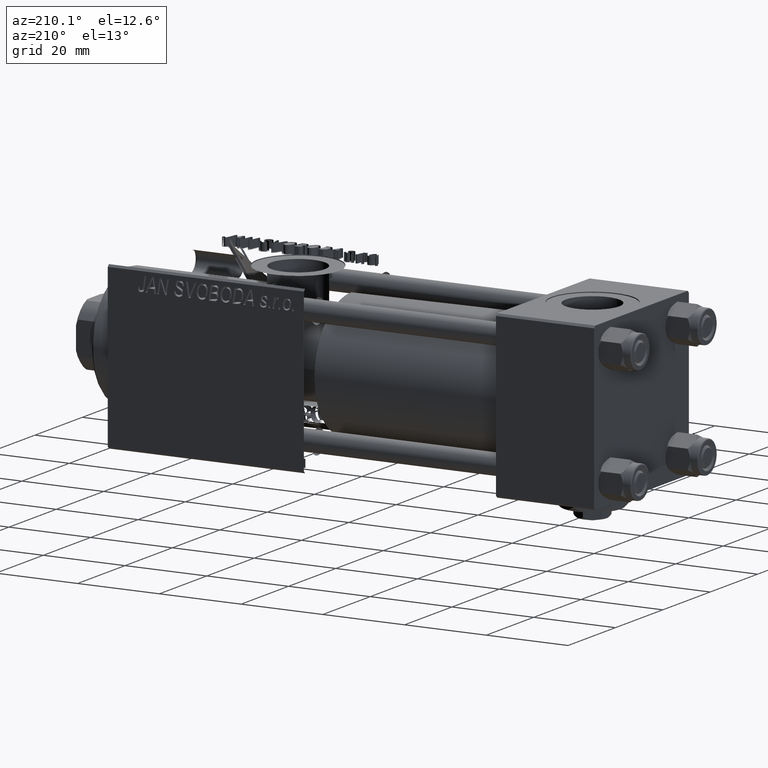
[diagram: clean part render]
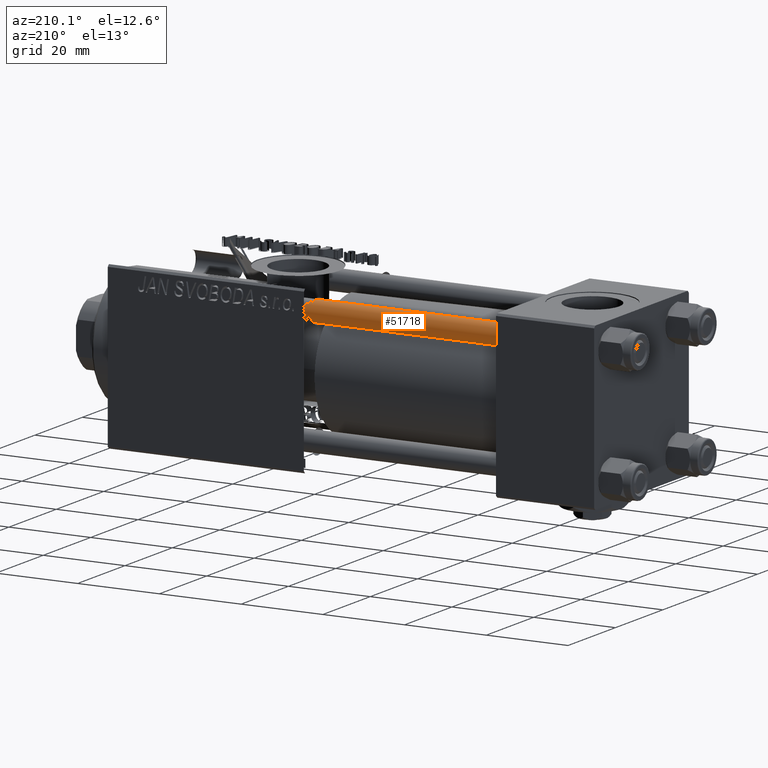
[diagram: same view with one face highlighted and labeled with its STEP entity id]
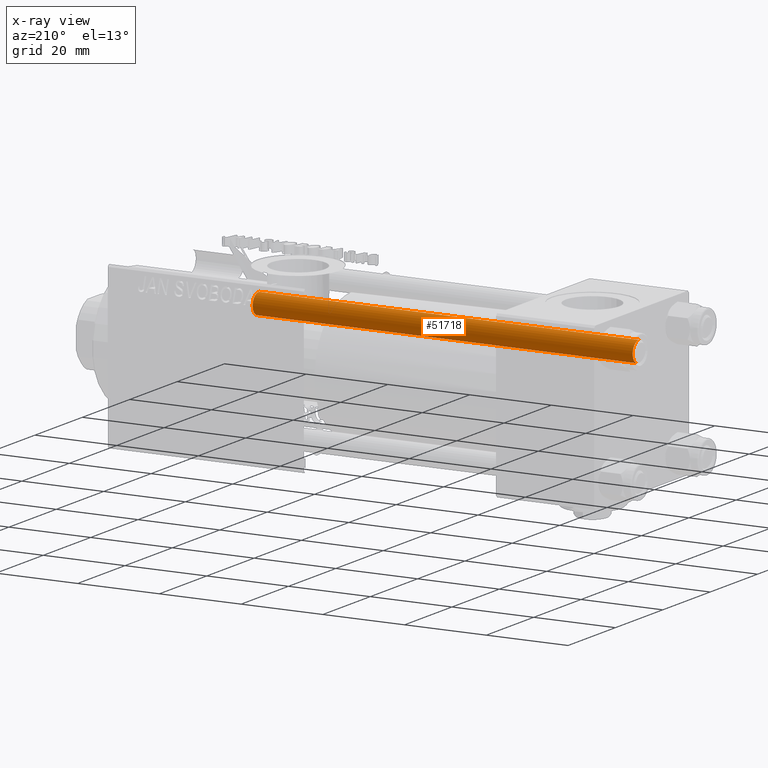
[diagram: x-ray of the same camera — body ghosted, the highlighted face saturated]
A machine part, auxiliary view. The second image highlights one B-rep face of the part: STEP entity #51718.
The next image is the same camera in x-ray: the body ghosted, the highlighted face saturated — about 0% of this face is hidden behind the body in this view.
In plain terms, the highlighted cylindrical surface (edge-blend (fillet) strip) has radius 2.5 mm, axis along (-1, 0, 0).
Its self-contained STEP definition (entity closure, byte-faithful):
#727 = EDGE_CURVE ( 'NONE', #40997, #17050, #11928, .T. ) ;
#1480 = FACE_OUTER_BOUND ( 'NONE', #21395, .T. ) ;
#3104 = EDGE_CURVE ( 'NONE', #35383, #10256, #26090, .T. ) ;
#5305 = CARTESIAN_POINT ( 'NONE',  ( -2.500000000000000000, 0.000000000000000000, 94.00000000000000000 ) ) ;
#5391 = DIRECTION ( 'NONE',  ( -1.000000000000000000, 0.000000000000000000, 0.000000000000000000 ) ) ;
#5643 = CIRCLE ( 'NONE', #25724, 2.500000000000000000 ) ;
#8053 = ORIENTED_EDGE ( 'NONE', *, *, #24848, .T. ) ;
#8663 = EDGE_CURVE ( 'NONE', #35383, #40997, #25279, .T. ) ;
#10256 = VERTEX_POINT ( 'NONE', #18129 ) ;
#11928 = LINE ( 'NONE', #40994, #22118 ) ;
#14643 = AXIS2_PLACEMENT_3D ( 'NONE', #41278, #45469, #5391 ) ;
#17050 = VERTEX_POINT ( 'NONE', #29866 ) ;
#18129 = CARTESIAN_POINT ( 'NONE',  ( -2.500000000000000000, 0.000000000000000000, 0.5000000000000004441 ) ) ;
#19367 = DIRECTION ( 'NONE',  ( -0.000000000000000000, -0.000000000000000000, 1.000000000000000000 ) ) ;
#21142 = DIRECTION ( 'NONE',  ( 1.000000000000000000, 0.000000000000000000, 0.000000000000000000 ) ) ;
#21395 = EDGE_LOOP ( 'NONE', ( #24558, #31498, #8053, #43288 ) ) ;
#22118 = VECTOR ( 'NONE', #28444, 1000.000000000000000 ) ;
#24558 = ORIENTED_EDGE ( 'NONE', *, *, #8663, .T. ) ;
#24848 = EDGE_CURVE ( 'NONE', #17050, #10256, #5643, .T. ) ;
#25279 = CIRCLE ( 'NONE', #31128, 2.500000000000000000 ) ;
#25724 = AXIS2_PLACEMENT_3D ( 'NONE', #31182, #19367, #51072 ) ;
#26090 = LINE ( 'NONE', #5305, #51618 ) ;
#28444 = DIRECTION ( 'NONE',  ( -0.000000000000000000, -0.000000000000000000, -1.000000000000000000 ) ) ;
#28458 = CARTESIAN_POINT ( 'NONE',  ( -2.500000000000000000, 0.000000000000000000, 93.50000000000001421 ) ) ;
#28979 = CYLINDRICAL_SURFACE ( 'NONE', #14643, 2.500000000000000000 ) ;
#29017 = DIRECTION ( 'NONE',  ( 0.000000000000000000, 0.000000000000000000, -1.000000000000000000 ) ) ;
#29866 = CARTESIAN_POINT ( 'NONE',  ( 2.500000000000000000, 3.061616997868383141E-16, 0.5000000000000004441 ) ) ;
#31128 = AXIS2_PLACEMENT_3D ( 'NONE', #37391, #29017, #21142 ) ;
#31182 = CARTESIAN_POINT ( 'NONE',  ( 0.000000000000000000, 0.000000000000000000, 0.5000000000000004441 ) ) ;
#31498 = ORIENTED_EDGE ( 'NONE', *, *, #727, .T. ) ;
#33089 = DIRECTION ( 'NONE',  ( -0.000000000000000000, -0.000000000000000000, -1.000000000000000000 ) ) ;
#33706 = CARTESIAN_POINT ( 'NONE',  ( 2.500000000000000000, 3.061616997868383141E-16, 93.50000000000001421 ) ) ;
#35383 = VERTEX_POINT ( 'NONE', #28458 ) ;
#37391 = CARTESIAN_POINT ( 'NONE',  ( 0.000000000000000000, 0.000000000000000000, 93.50000000000001421 ) ) ;
#40994 = CARTESIAN_POINT ( 'NONE',  ( 2.500000000000000000, 3.061616997868383141E-16, 94.00000000000000000 ) ) ;
#40997 = VERTEX_POINT ( 'NONE', #33706 ) ;
#41278 = CARTESIAN_POINT ( 'NONE',  ( 0.000000000000000000, 0.000000000000000000, 94.00000000000000000 ) ) ;
#43288 = ORIENTED_EDGE ( 'NONE', *, *, #3104, .F. ) ;
#45469 = DIRECTION ( 'NONE',  ( -0.000000000000000000, -0.000000000000000000, -1.000000000000000000 ) ) ;
#51072 = DIRECTION ( 'NONE',  ( 1.000000000000000000, 0.000000000000000000, 0.000000000000000000 ) ) ;
#51618 = VECTOR ( 'NONE', #33089, 1000.000000000000000 ) ;
#51718 = ADVANCED_FACE ( 'NONE', ( #1480 ), #28979, .T. ) ;